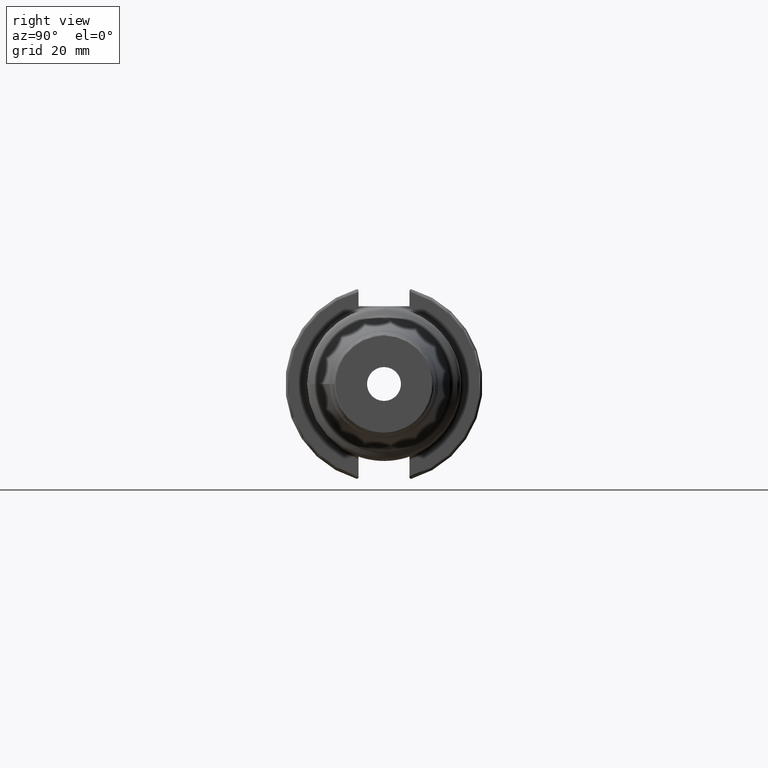
[diagram: clean part render]
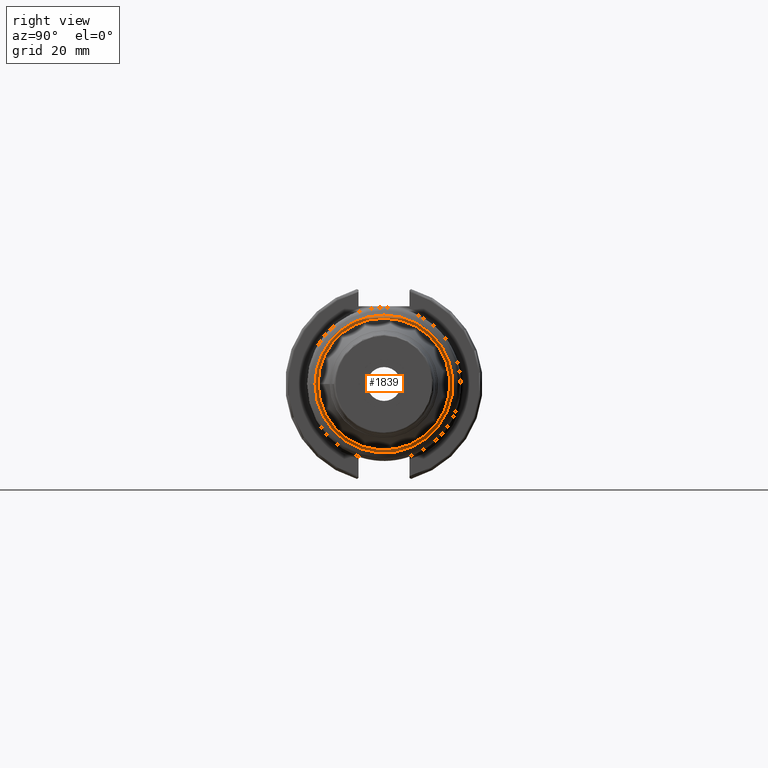
[diagram: same view with one face highlighted and labeled with its STEP entity id]
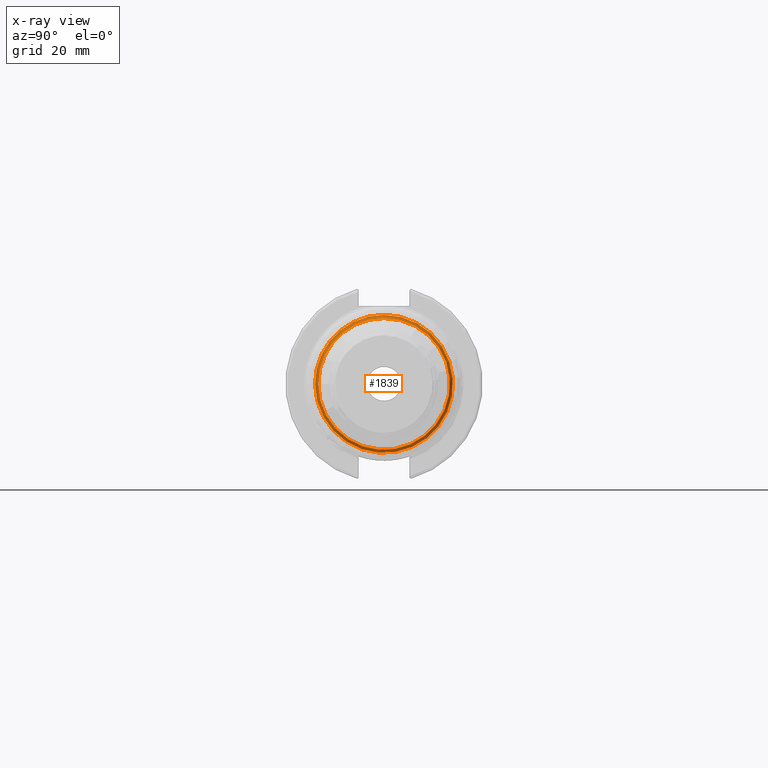
[diagram: x-ray of the same camera — body ghosted, the highlighted face saturated]
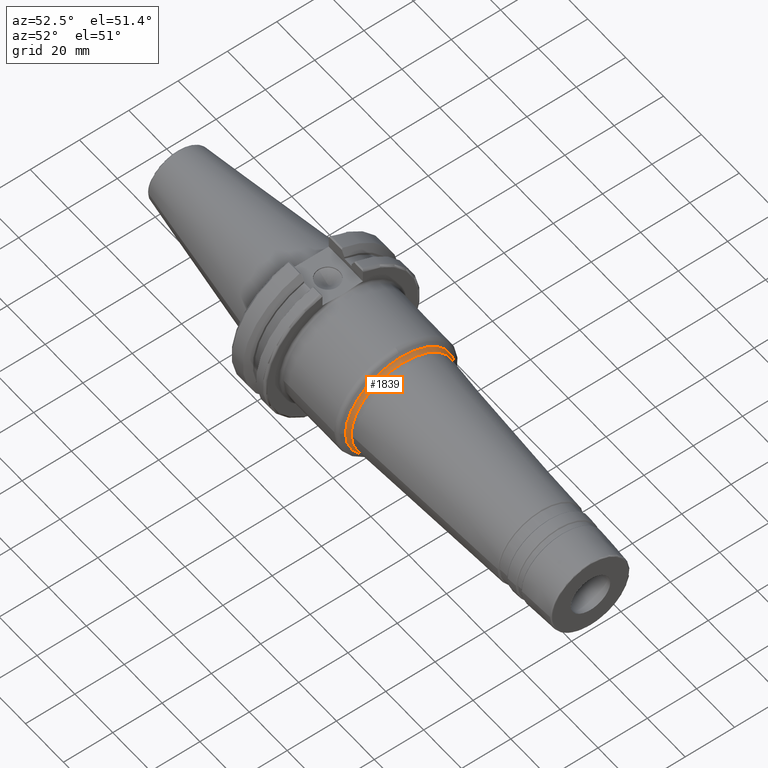
[diagram: same view with one face highlighted and labeled with its STEP entity id]
A machine part, right view. The second image highlights one B-rep face of the part: STEP entity #1839.
The next image is the same camera in x-ray: the body ghosted, the highlighted face saturated — about 0% of this face is hidden behind the body in this view.
A second angle (auxiliary view) of the same face is appended — the face is thin or edge-on in the first view.
In plain terms, the highlighted toroidal blend (fillet) surface has major radius 23.1812 mm and minor (blend) radius 2 mm.
Its self-contained STEP definition (entity closure, byte-faithful):
#398=FACE_OUTER_BOUND('',#505,.T.);
#505=EDGE_LOOP('',(#1343,#1344,#1345,#1346,#1347,#1348));
#645=CIRCLE('',#2005,21.1839457168278);
#646=CIRCLE('',#2006,21.1839457168278);
#657=CIRCLE('',#2023,22.181204786337);
#658=CIRCLE('',#2024,2.);
#659=CIRCLE('',#2025,22.181204786337);
#764=VERTEX_POINT('',#2896);
#765=VERTEX_POINT('',#2898);
#780=VERTEX_POINT('',#2983);
#781=VERTEX_POINT('',#2984);
#974=EDGE_CURVE('',#765,#764,#645,.T.);
#975=EDGE_CURVE('',#764,#765,#646,.T.);
#994=EDGE_CURVE('',#780,#781,#657,.T.);
#995=EDGE_CURVE('',#781,#765,#658,.T.);
#996=EDGE_CURVE('',#781,#780,#659,.T.);
#1343=ORIENTED_EDGE('',*,*,#994,.T.);
#1344=ORIENTED_EDGE('',*,*,#995,.T.);
#1345=ORIENTED_EDGE('',*,*,#974,.T.);
#1346=ORIENTED_EDGE('',*,*,#975,.T.);
#1347=ORIENTED_EDGE('',*,*,#995,.F.);
#1348=ORIENTED_EDGE('',*,*,#996,.T.);
#1809=TOROIDAL_SURFACE('',#2022,23.181204786337,2.);
#1839=ADVANCED_FACE('',(#398),#1809,.F.);
#2005=AXIS2_PLACEMENT_3D('',#2899,#2326,#2327);
#2006=AXIS2_PLACEMENT_3D('',#2900,#2328,#2329);
#2022=AXIS2_PLACEMENT_3D('',#2982,#2364,#2365);
#2023=AXIS2_PLACEMENT_3D('',#2985,#2366,#2367);
#2024=AXIS2_PLACEMENT_3D('',#2986,#2368,#2369);
#2025=AXIS2_PLACEMENT_3D('',#2987,#2370,#2371);
#2326=DIRECTION('center_axis',(-1.,0.,0.));
#2327=DIRECTION('ref_axis',(0.,-1.,3.06161699786838E-17));
#2328=DIRECTION('center_axis',(-1.,0.,0.));
#2329=DIRECTION('ref_axis',(0.,-1.,3.06161699786838E-17));
#2364=DIRECTION('center_axis',(1.,0.,0.));
#2365=DIRECTION('ref_axis',(0.,0.,-1.));
#2366=DIRECTION('center_axis',(1.,0.,0.));
#2367=DIRECTION('ref_axis',(0.,-1.,3.06161699786838E-17));
#2368=DIRECTION('center_axis',(0.,-1.,-1.22464679914735E-16));
#2369=DIRECTION('ref_axis',(0.,-1.22464679914735E-16,1.));
#2370=DIRECTION('center_axis',(1.,0.,0.));
#2371=DIRECTION('ref_axis',(0.,-1.,3.06161699786838E-17));
#2896=CARTESIAN_POINT('',(51.0844231954446,-21.1839457168278,-2.59428513154245E-15));
#2898=CARTESIAN_POINT('',(51.0844231954446,-2.59428513154245E-15,21.1839457168278));
#2899=CARTESIAN_POINT('Origin',(51.0844231954446,0.,-3.24285641442806E-15));
#2900=CARTESIAN_POINT('Origin',(51.0844231954446,0.,-3.24285641442806E-15));
#2982=CARTESIAN_POINT('Origin',(51.1890951079304,0.,0.));
#2983=CARTESIAN_POINT('',(49.4570443003616,-22.181204786337,-2.71641414428196E-15));
#2984=CARTESIAN_POINT('',(49.4570443003616,-2.71641414428196E-15,22.181204786337));
#2985=CARTESIAN_POINT('Origin',(49.4570443003616,0.,-3.39551768035244E-15));
#2986=CARTESIAN_POINT('Origin',(51.1890951079304,-2.83887882419669E-15,
23.181204786337));
#2987=CARTESIAN_POINT('Origin',(49.4570443003616,0.,-3.39551768035244E-15));